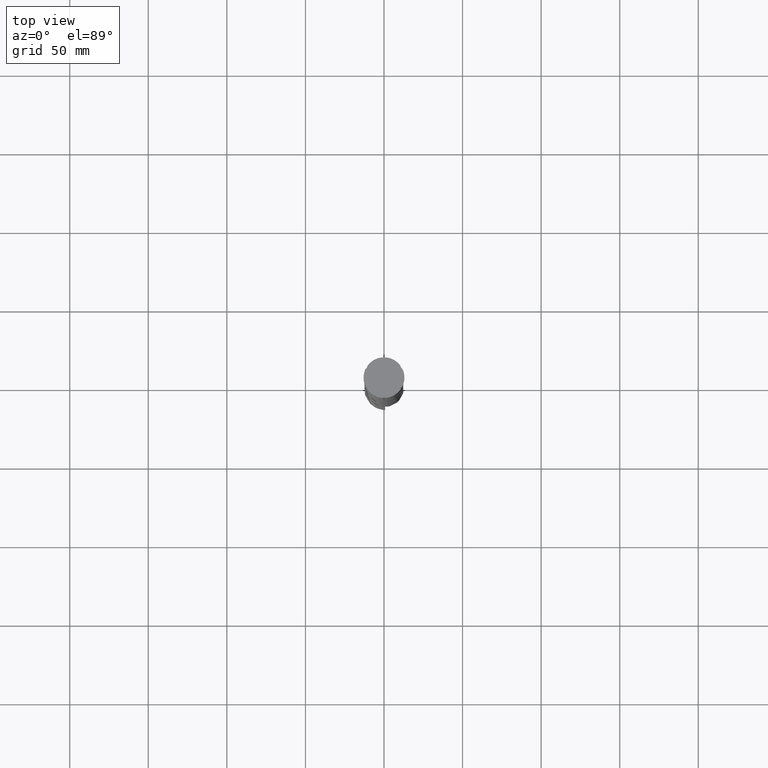
[diagram: clean part render]
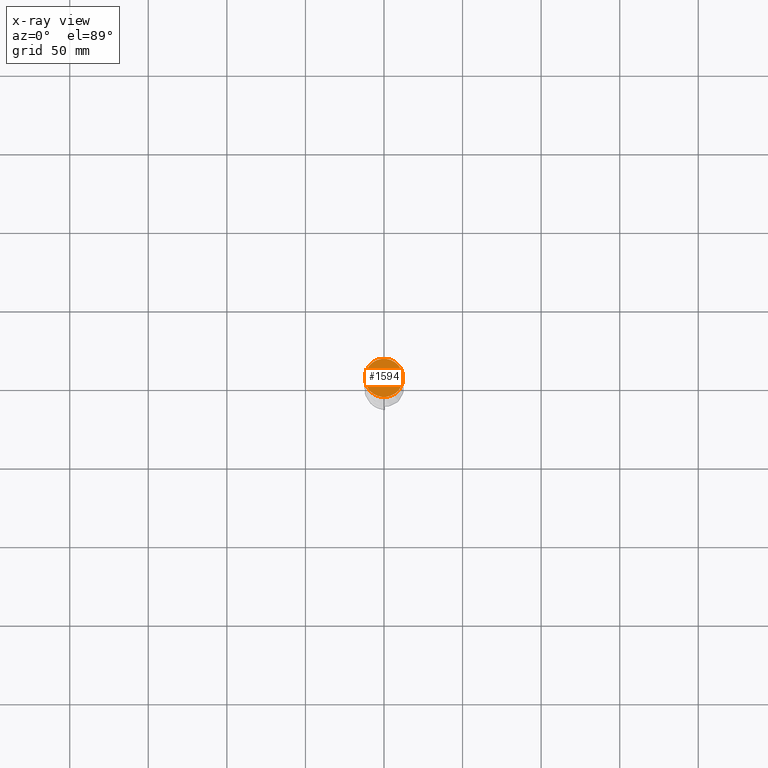
[diagram: x-ray — body ghosted, one internal face saturated and labeled with its STEP entity id]
A machine part, top view, then the same camera in x-ray: the body is ghosted and one INTERNAL B-rep face — a face not visible from any outside direction — is saturated and labeled: STEP entity #1594.
In plain terms, the highlighted planar face has unit normal (0, 0, -1).
Its self-contained STEP definition (entity closure, byte-faithful):
#112 = PLANE ( 'NONE',  #3942 ) ;
#140 = CIRCLE ( 'NONE', #2987, 12.20000000000000639 ) ;
#532 = VERTEX_POINT ( 'NONE', #1222 ) ;
#1047 = EDGE_CURVE ( 'NONE', #3940, #532, #3780, .T. ) ;
#1083 = DIRECTION ( 'NONE',  ( -0.000000000000000000, -0.000000000000000000, 1.000000000000000000 ) ) ;
#1222 = CARTESIAN_POINT ( 'NONE',  ( -12.20000000000000639, 0.000000000000000000, -12.00000000000000000 ) ) ;
#1477 = ORIENTED_EDGE ( 'NONE', *, *, #1047, .T. ) ;
#1594 = ADVANCED_FACE ( 'NONE', ( #3386 ), #112, .F. ) ;
#2104 = EDGE_CURVE ( 'NONE', #532, #3940, #140, .T. ) ;
#2282 = CARTESIAN_POINT ( 'NONE',  ( 0.000000000000000000, 0.000000000000000000, -12.00000000000000000 ) ) ;
#2620 = ORIENTED_EDGE ( 'NONE', *, *, #2104, .T. ) ;
#2898 = CARTESIAN_POINT ( 'NONE',  ( 12.20000000000000639, 1.512438796946981880E-15, -12.00000000000000000 ) ) ;
#2903 = DIRECTION ( 'NONE',  ( 0.000000000000000000, 0.000000000000000000, -1.000000000000000000 ) ) ;
#2987 = AXIS2_PLACEMENT_3D ( 'NONE', #3392, #3712, #3128 ) ;
#3128 = DIRECTION ( 'NONE',  ( -1.000000000000000000, 0.000000000000000000, 0.000000000000000000 ) ) ;
#3386 = FACE_OUTER_BOUND ( 'NONE', #3453, .T. ) ;
#3392 = CARTESIAN_POINT ( 'NONE',  ( 0.000000000000000000, 0.000000000000000000, -12.00000000000000000 ) ) ;
#3453 = EDGE_LOOP ( 'NONE', ( #2620, #1477 ) ) ;
#3712 = DIRECTION ( 'NONE',  ( -0.000000000000000000, -0.000000000000000000, 1.000000000000000000 ) ) ;
#3780 = CIRCLE ( 'NONE', #3921, 12.20000000000000639 ) ;
#3921 = AXIS2_PLACEMENT_3D ( 'NONE', #2282, #1083, #4322 ) ;
#3940 = VERTEX_POINT ( 'NONE', #2898 ) ;
#3942 = AXIS2_PLACEMENT_3D ( 'NONE', #4408, #2903, #4329 ) ;
#4322 = DIRECTION ( 'NONE',  ( -1.000000000000000000, 0.000000000000000000, 0.000000000000000000 ) ) ;
#4329 = DIRECTION ( 'NONE',  ( -1.000000000000000000, 0.000000000000000000, -0.000000000000000000 ) ) ;
#4408 = CARTESIAN_POINT ( 'NONE',  ( 0.000000000000000000, 0.000000000000000000, -12.00000000000000000 ) ) ;